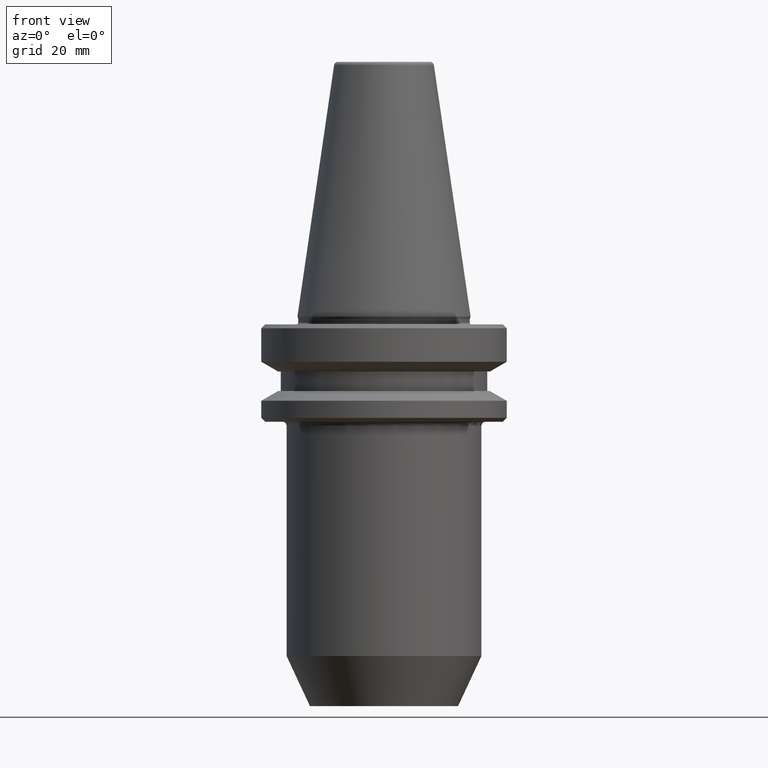
[diagram: clean part render]
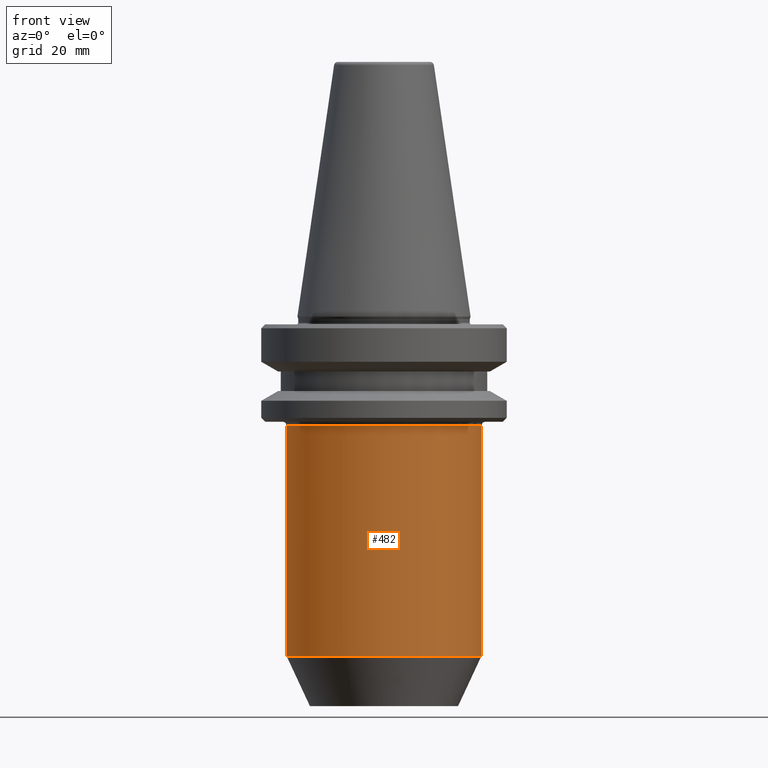
[diagram: same view with one face highlighted and labeled with its STEP entity id]
A machine part, front view. The second image highlights one B-rep face of the part: STEP entity #482.
In plain terms, the highlighted cylindrical surface (partial cylindrical patch) has radius 25 mm, axis along (-0, -0, 1).
Its self-contained STEP definition (entity closure, byte-faithful):
#49 = CARTESIAN_POINT ( 'NONE',  ( 25.00000000000000000, 0.0000000000000000000, 82.74845858742440900 ) ) ;
#64 = AXIS2_PLACEMENT_3D ( 'NONE', #256, #819, #354 ) ;
#91 = CARTESIAN_POINT ( 'NONE',  ( -25.00000000000000000, 3.061616997868383000E-015, 82.74845858742440900 ) ) ;
#101 = EDGE_CURVE ( 'NONE', #1048, #131, #877, .T. ) ;
#131 = VERTEX_POINT ( 'NONE', #573 ) ;
#160 = VECTOR ( 'NONE', #677, 1000.000000000000000 ) ;
#178 = AXIS2_PLACEMENT_3D ( 'NONE', #940, #483, #1007 ) ;
#256 = CARTESIAN_POINT ( 'NONE',  ( 0.0000000000000000000, 0.0000000000000000000, -27.31128678844368800 ) ) ;
#265 = AXIS2_PLACEMENT_3D ( 'NONE', #267, #381, #290 ) ;
#267 = CARTESIAN_POINT ( 'NONE',  ( 0.0000000000000000000, 0.0000000000000000000, 82.74845858742440900 ) ) ;
#281 = ORIENTED_EDGE ( 'NONE', *, *, #893, .F. ) ;
#290 = DIRECTION ( 'NONE',  ( 1.000000000000000000, 0.0000000000000000000, 0.0000000000000000000 ) ) ;
#294 = CARTESIAN_POINT ( 'NONE',  ( -25.00000000000000000, 3.061616997868383000E-015, -27.31128678844368800 ) ) ;
#354 = DIRECTION ( 'NONE',  ( 1.000000000000000000, 0.0000000000000000000, 0.0000000000000000000 ) ) ;
#381 = DIRECTION ( 'NONE',  ( -0.0000000000000000000, -0.0000000000000000000, 1.000000000000000000 ) ) ;
#440 = ORIENTED_EDGE ( 'NONE', *, *, #101, .T. ) ;
#482 = ADVANCED_FACE ( 'NONE', ( #1002 ), #1039, .T. ) ;
#483 = DIRECTION ( 'NONE',  ( -0.0000000000000000000, -0.0000000000000000000, 1.000000000000000000 ) ) ;
#494 = LINE ( 'NONE', #91, #160 ) ;
#531 = CARTESIAN_POINT ( 'NONE',  ( 25.00000000000000000, 0.0000000000000000000, -86.44424526528283100 ) ) ;
#546 = VECTOR ( 'NONE', #643, 1000.000000000000000 ) ;
#573 = CARTESIAN_POINT ( 'NONE',  ( 25.00000000000000000, 0.0000000000000000000, -27.31128678844368800 ) ) ;
#584 = ORIENTED_EDGE ( 'NONE', *, *, #671, .T. ) ;
#619 = VERTEX_POINT ( 'NONE', #294 ) ;
#643 = DIRECTION ( 'NONE',  ( -0.0000000000000000000, -0.0000000000000000000, 1.000000000000000000 ) ) ;
#671 = EDGE_CURVE ( 'NONE', #967, #1048, #774, .T. ) ;
#677 = DIRECTION ( 'NONE',  ( -0.0000000000000000000, -0.0000000000000000000, 1.000000000000000000 ) ) ;
#774 = CIRCLE ( 'NONE', #178, 25.00000000000000000 ) ;
#801 = CIRCLE ( 'NONE', #64, 25.00000000000000000 ) ;
#817 = EDGE_CURVE ( 'NONE', #619, #131, #801, .T. ) ;
#819 = DIRECTION ( 'NONE',  ( -0.0000000000000000000, -0.0000000000000000000, 1.000000000000000000 ) ) ;
#877 = LINE ( 'NONE', #49, #546 ) ;
#893 = EDGE_CURVE ( 'NONE', #967, #619, #494, .T. ) ;
#911 = CARTESIAN_POINT ( 'NONE',  ( -25.00000000000000000, 3.061616997868383000E-015, -86.44424526528283100 ) ) ;
#940 = CARTESIAN_POINT ( 'NONE',  ( 0.0000000000000000000, 0.0000000000000000000, -86.44424526528283100 ) ) ;
#956 = ORIENTED_EDGE ( 'NONE', *, *, #817, .F. ) ;
#967 = VERTEX_POINT ( 'NONE', #911 ) ;
#1002 = FACE_OUTER_BOUND ( 'NONE', #1015, .T. ) ;
#1007 = DIRECTION ( 'NONE',  ( 1.000000000000000000, 0.0000000000000000000, 0.0000000000000000000 ) ) ;
#1015 = EDGE_LOOP ( 'NONE', ( #281, #584, #440, #956 ) ) ;
#1039 = CYLINDRICAL_SURFACE ( 'NONE', #265, 25.00000000000000000 ) ;
#1048 = VERTEX_POINT ( 'NONE', #531 ) ;